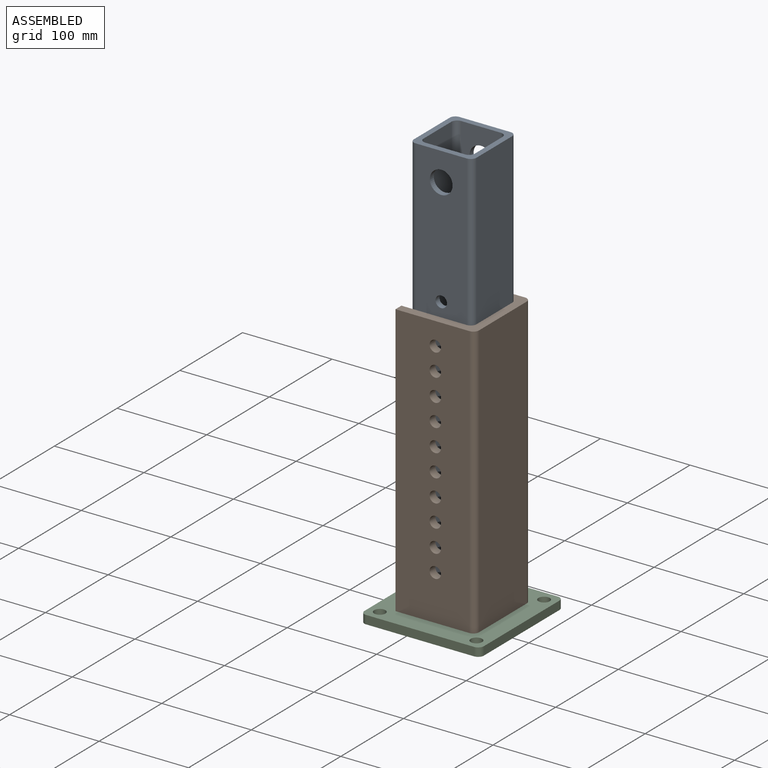
[diagram: assembled view]
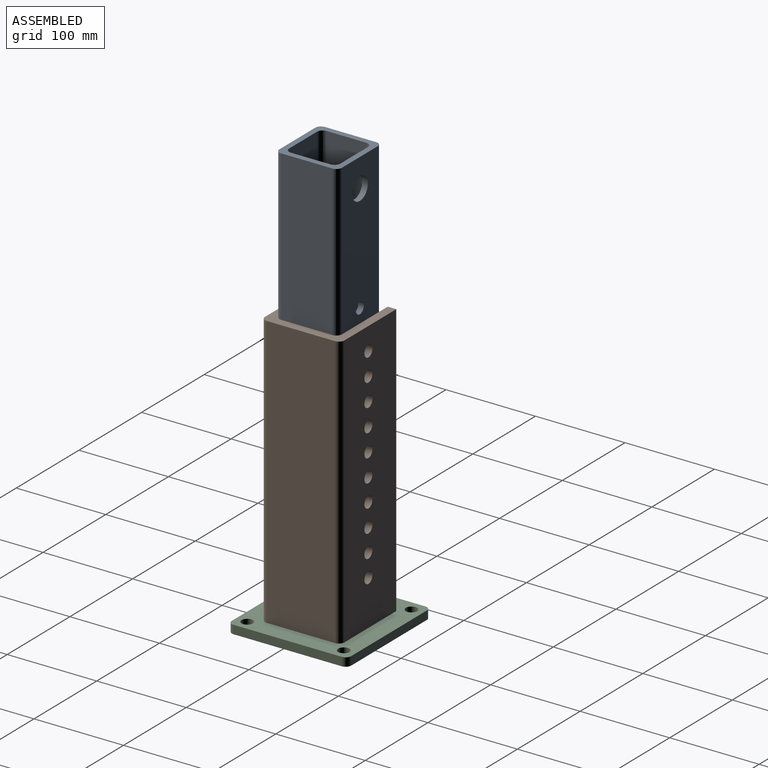
[diagram: assembled view, second angle]
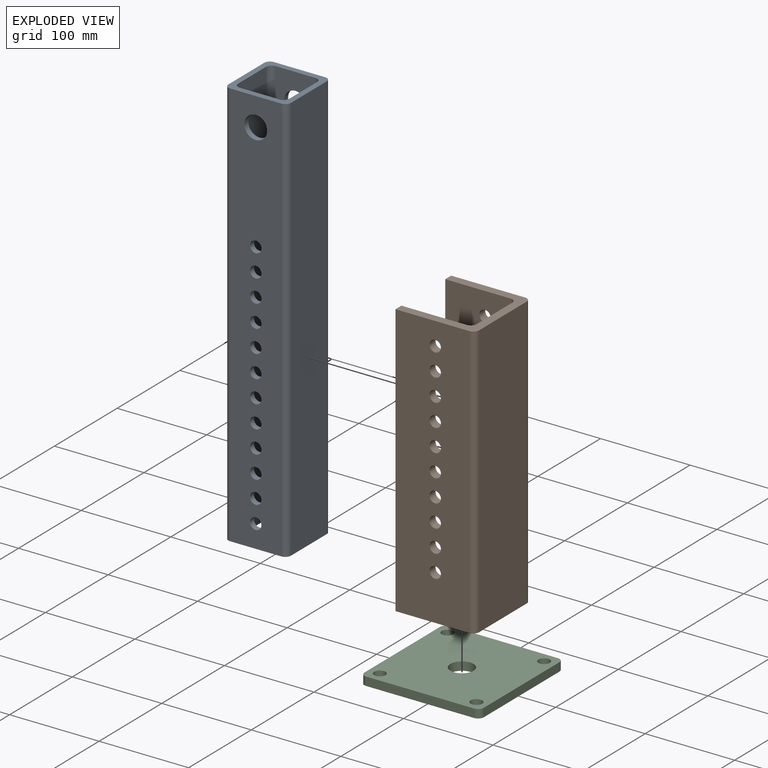
[diagram: exploded view]
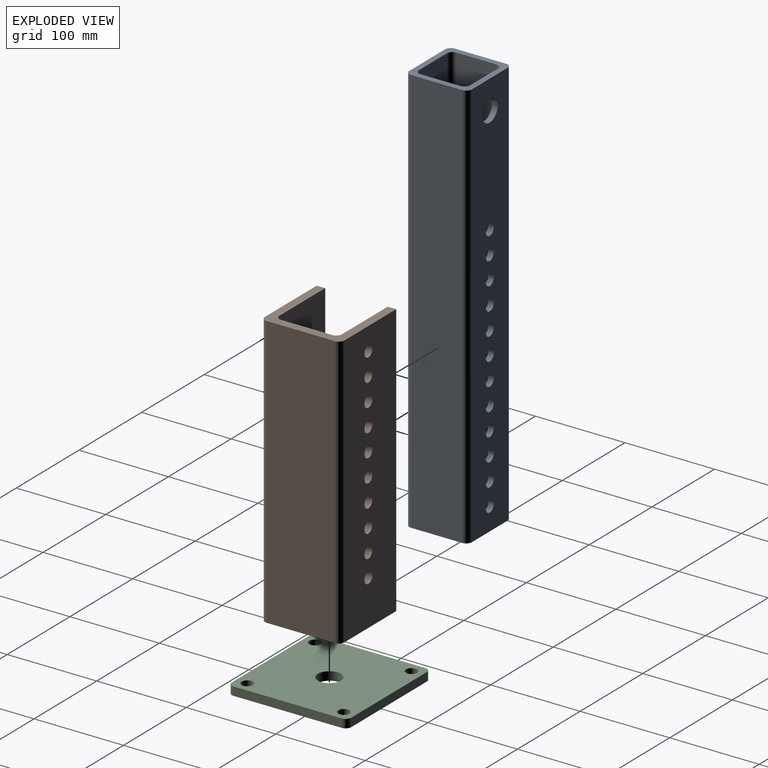
[diagram: exploded view, second angle]
ASSEMBLY  parts=3 mates=3
PART A: 44 faces, bbox 69.9x69.9x457.2 mm
  f0: plane 457.2x57.15mm, normal (0,-1,0), area 24102.2mm2, adj f1,f15,f16,f17,f31,f32,f33,f34
  f1: cylinder r=6.35mm len=457.2mm, axis (0,0,-1), area 4560.4mm2, adj f0,f2,f16,f17
  f2: plane 457.2x57.15mm, normal (1,0,0), area 26129mm2, adj f1,f3,f16,f17
  f3: cylinder r=6.35mm len=457.2mm, axis (0,0,-1), area 4560.4mm2, adj f2,f4,f16,f17
  f4: plane 457.2x57.15mm, normal (0,1,0), area 24102.2mm2, adj f3,f5,f16,f17,f18,f19,f20,f21
  f5: cylinder r=6.35mm len=457.2mm, axis (0,0,-1), area 4560.4mm2, adj f4,f6,f16,f17
  f6: plane 457.2x57.15mm, normal (-1,0,0), area 26129mm2, adj f5,f15,f16,f17
  f7: cylinder r=6.35mm len=457.2mm, axis (0,0,-1), area 4560.4mm2, adj f8,f14,f16,f17
  f8: plane 457.2x44.45mm, normal (-1,0,0), area 20322.5mm2, adj f7,f9,f16,f17
  f9: cylinder r=6.35mm len=457.2mm, axis (0,0,-1), area 4560.4mm2, adj f8,f10,f16,f17
  f10: plane 457.2x44.45mm, normal (0,1,0), area 18295.7mm2, adj f9,f11,f16,f17,f31,f32,f33,f34
  f11: cylinder r=6.35mm len=457.2mm, axis (0,0,-1), area 4560.4mm2, adj f10,f12,f16,f17
  f12: plane 457.2x44.45mm, normal (1,0,0), area 20322.5mm2, adj f11,f13,f16,f17
  f13: cylinder r=6.35mm len=457.2mm, axis (0,0,-1), area 4560.4mm2, adj f12,f14,f16,f17
  f14: plane 457.2x44.45mm, normal (0,-1,0), area 18295.7mm2, adj f7,f13,f16,f17,f18,f19,f20,f21
  f15: cylinder r=6.35mm len=457.2mm, axis (0,0,-1), area 4560.4mm2, adj f0,f6,f16,f17
  f16: plane 69.85x69.85mm, normal (0,0,1), area 1612.9mm2, adj f0,f1,f2,f3,f4,f5,f6,f7
  f17: plane 69.85x69.85mm, normal (0,0,-1), area 1612.9mm2, adj f0,f1,f2,f3,f4,f5,f6,f7
  f18: cylinder r=6.35mm len=12.7mm, axis (0,-1,0), area 253.4mm2, adj f4,f14
  f19: cylinder r=6.35mm len=12.7mm, axis (0,-1,0), area 253.4mm2, adj f4,f14
  f20: cylinder r=6.35mm len=12.7mm, axis (0,-1,0), area 253.4mm2, adj f4,f14
  f21: cylinder r=6.35mm len=12.7mm, axis (0,-1,0), area 253.4mm2, adj f4,f14
  f22: cylinder r=6.35mm len=12.7mm, axis (0,-1,0), area 253.4mm2, adj f4,f14
  f23: cylinder r=6.35mm len=12.7mm, axis (0,-1,0), area 253.4mm2, adj f4,f14
  f24: cylinder r=6.35mm len=12.7mm, axis (0,-1,0), area 253.4mm2, adj f4,f14
  f25: cylinder r=6.35mm len=12.7mm, axis (0,-1,0), area 253.4mm2, adj f4,f14
  f26: cylinder r=6.35mm len=12.7mm, axis (0,-1,0), area 253.4mm2, adj f4,f14
  f27: cylinder r=6.35mm len=12.7mm, axis (0,-1,0), area 253.4mm2, adj f4,f14
  f28: cylinder r=6.35mm len=12.7mm, axis (0,-1,0), area 253.4mm2, adj f4,f14
  f29: cylinder r=6.35mm len=12.7mm, axis (0,-1,0), area 253.4mm2, adj f4,f14
  f30: cylinder r=12.7mm len=25.4mm, axis (0,-1,0), area 506.7mm2, adj f4,f14
  f31: cylinder r=6.35mm len=12.7mm, axis (0,-1,0), area 253.4mm2, adj f0,f10
  f32: cylinder r=6.35mm len=12.7mm, axis (0,-1,0), area 253.4mm2, adj f0,f10
  f33: cylinder r=6.35mm len=12.7mm, axis (0,-1,0), area 253.4mm2, adj f0,f10
  f34: cylinder r=6.35mm len=12.7mm, axis (0,-1,0), area 253.4mm2, adj f0,f10
  f35: cylinder r=6.35mm len=12.7mm, axis (0,-1,0), area 253.4mm2, adj f0,f10
  f36: cylinder r=6.35mm len=12.7mm, axis (0,-1,0), area 253.4mm2, adj f0,f10
  f37: cylinder r=6.35mm len=12.7mm, axis (0,-1,0), area 253.4mm2, adj f0,f10
  f38: cylinder r=6.35mm len=12.7mm, axis (0,-1,0), area 253.4mm2, adj f0,f10
  f39: cylinder r=6.35mm len=12.7mm, axis (0,-1,0), area 253.4mm2, adj f0,f10
  f40: cylinder r=6.35mm len=12.7mm, axis (0,-1,0), area 253.4mm2, adj f0,f10
  f41: cylinder r=6.35mm len=12.7mm, axis (0,-1,0), area 253.4mm2, adj f0,f10
  f42: cylinder r=6.35mm len=12.7mm, axis (0,-1,0), area 253.4mm2, adj f0,f10
  f43: cylinder r=12.7mm len=25.4mm, axis (0,-1,0), area 506.7mm2, adj f0,f10
PART B: 34 faces, bbox 88.9x88.9x304.8 mm
  f0: plane 304.8x73.03mm, normal (0,-1,0), area 20991.3mm2, adj f1,f11,f12,f13,f14,f15,f16,f17
  f1: cylinder r=6.35mm len=304.8mm, axis (0,0,-1), area 3040.2mm2, adj f0,f2,f12,f13
  f2: plane 304.8x57.15mm, normal (-1,0,0), area 17419.3mm2, adj f1,f3,f12,f13
  f3: cylinder r=6.35mm len=304.8mm, axis (0,0,-1), area 3040.2mm2, adj f2,f4,f12,f13
  f4: plane 304.8x73.03mm, normal (0,1,0), area 20991.3mm2, adj f3,f5,f12,f13,f24,f25,f26,f27
  f5: plane 304.8x9.53mm, normal (-1,0,0), area 2903.2mm2, adj f4,f6,f12,f13
  f6: plane 304.8x82.55mm, normal (0,-1,0), area 23894.5mm2, adj f5,f7,f12,f13,f24,f25,f26,f27
  f7: cylinder r=6.35mm len=304.8mm, axis (0,0,-1), area 3040.2mm2, adj f6,f8,f12,f13
  f8: plane 304.8x76.2mm, normal (1,0,0), area 23225.8mm2, adj f7,f9,f12,f13
  f9: cylinder r=6.35mm len=304.8mm, axis (0,0,-1), area 3040.2mm2, adj f8,f10,f12,f13
  f10: plane 304.8x82.55mm, normal (0,1,0), area 23894.5mm2, adj f9,f11,f12,f13,f14,f15,f16,f17
  f11: plane 304.8x9.53mm, normal (-1,0,0), area 2903.2mm2, adj f0,f10,f12,f13
  f12: plane 88.9x88.9mm, normal (0,0,1), area 2358.9mm2, adj f0,f1,f2,f3,f4,f5,f6,f7
  f13: plane 88.9x88.9mm, normal (0,0,-1), area 2358.9mm2, adj f0,f1,f2,f3,f4,f5,f6,f7
  f14: cylinder r=6.35mm len=12.7mm, axis (0,-1,0), area 380mm2, adj f0,f10
  f15: cylinder r=6.35mm len=12.7mm, axis (0,-1,0), area 380mm2, adj f0,f10
  f16: cylinder r=6.35mm len=12.7mm, axis (0,-1,0), area 380mm2, adj f0,f10
  f17: cylinder r=6.35mm len=12.7mm, axis (0,-1,0), area 380mm2, adj f0,f10
  f18: cylinder r=6.35mm len=12.7mm, axis (0,-1,0), area 380mm2, adj f0,f10
  f19: cylinder r=6.35mm len=12.7mm, axis (0,-1,0), area 380mm2, adj f0,f10
  f20: cylinder r=6.35mm len=12.7mm, axis (0,-1,0), area 380mm2, adj f0,f10
  f21: cylinder r=6.35mm len=12.7mm, axis (0,-1,0), area 380mm2, adj f0,f10
  f22: cylinder r=6.35mm len=12.7mm, axis (0,-1,0), area 380mm2, adj f0,f10
  f23: cylinder r=6.35mm len=12.7mm, axis (0,-1,0), area 380mm2, adj f0,f10
  f24: cylinder r=6.35mm len=12.7mm, axis (0,-1,0), area 380mm2, adj f4,f6
  f25: cylinder r=6.35mm len=12.7mm, axis (0,-1,0), area 380mm2, adj f4,f6
  f26: cylinder r=6.35mm len=12.7mm, axis (0,-1,0), area 380mm2, adj f4,f6
  f27: cylinder r=6.35mm len=12.7mm, axis (0,-1,0), area 380mm2, adj f4,f6
  f28: cylinder r=6.35mm len=12.7mm, axis (0,-1,0), area 380mm2, adj f4,f6
  f29: cylinder r=6.35mm len=12.7mm, axis (0,-1,0), area 380mm2, adj f4,f6
  f30: cylinder r=6.35mm len=12.7mm, axis (0,-1,0), area 380mm2, adj f4,f6
  f31: cylinder r=6.35mm len=12.7mm, axis (0,-1,0), area 380mm2, adj f4,f6
  f32: cylinder r=6.35mm len=12.7mm, axis (0,-1,0), area 380mm2, adj f4,f6
  f33: cylinder r=6.35mm len=12.7mm, axis (0,-1,0), area 380mm2, adj f4,f6
PART C: 15 faces, bbox 133.4x133.4x9.5 mm
  f0: plane 120.65x9.53mm, normal (0,1,0), area 1149.2mm2, adj f1,f12,f13,f14
  f1: cylinder r=6.35mm len=9.53mm, axis (0,0,-1), area 95mm2, adj f0,f2,f13,f14
  f2: plane 120.65x9.53mm, normal (-1,0,0), area 1149.2mm2, adj f1,f3,f13,f14
  f3: cylinder r=6.35mm len=9.53mm, axis (0,0,-1), area 95mm2, adj f2,f4,f13,f14
  f4: plane 120.65x9.53mm, normal (0,-1,0), area 1149.2mm2, adj f3,f5,f13,f14
  f5: cylinder r=6.35mm len=9.53mm, axis (0,0,-1), area 95mm2, adj f4,f6,f13,f14
  f6: plane 120.65x9.53mm, normal (1,0,0), area 1149.2mm2, adj f5,f12,f13,f14
  f7: cylinder r=12.95mm len=25.91mm, axis (0,0,-1), area 775.3mm2, adj f13,f14
  f8: cylinder r=6.35mm len=12.7mm, axis (0,0,-1), area 380mm2, adj f13,f14
  f9: cylinder r=6.35mm len=12.7mm, axis (0,0,-1), area 380mm2, adj f13,f14
  f10: cylinder r=6.35mm len=12.7mm, axis (0,0,-1), area 380mm2, adj f13,f14
  f11: cylinder r=6.35mm len=12.7mm, axis (0,0,-1), area 380mm2, adj f13,f14
  f12: cylinder r=6.35mm len=9.53mm, axis (0,0,-1), area 95mm2, adj f0,f6,f13,f14
  f13: plane 133.35x133.35mm, normal (0,0,1), area 16713.7mm2, adj f0,f1,f2,f3,f4,f5,f6,f7
  f14: plane 133.35x133.35mm, normal (0,0,-1), area 16713.7mm2, adj f0,f1,f2,f3,f4,f5,f6,f7
PLACE A t=(-115.78,154.34,25.24)mm
PLACE B t=(26.08,217.82,9.52)mm
PLACE C at identity
MATE fastened B.f13 <-> C.f13  axis (0,0,-1) through (47.3,-8.91,9.52)mm
MATE planar A.f2 <-> B.f2  axis (1,0,0) through (37.77,-8.91,253.84)mm
MATE planar A.f4 <-> B.f21  axis (0,1,0) through (2.85,26.01,253.71)mm
